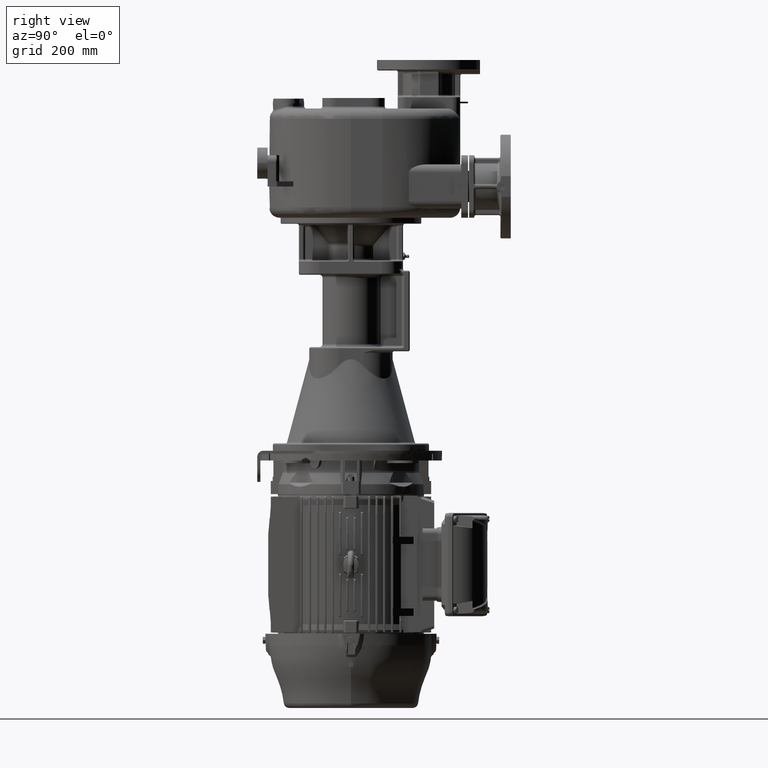
[diagram: clean part render]
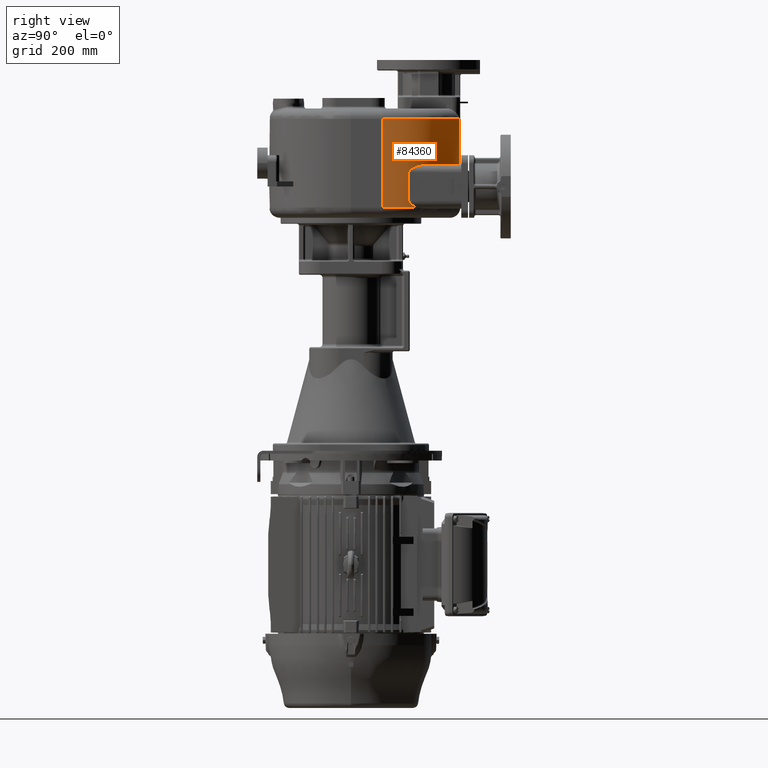
[diagram: same view with one face highlighted and labeled with its STEP entity id]
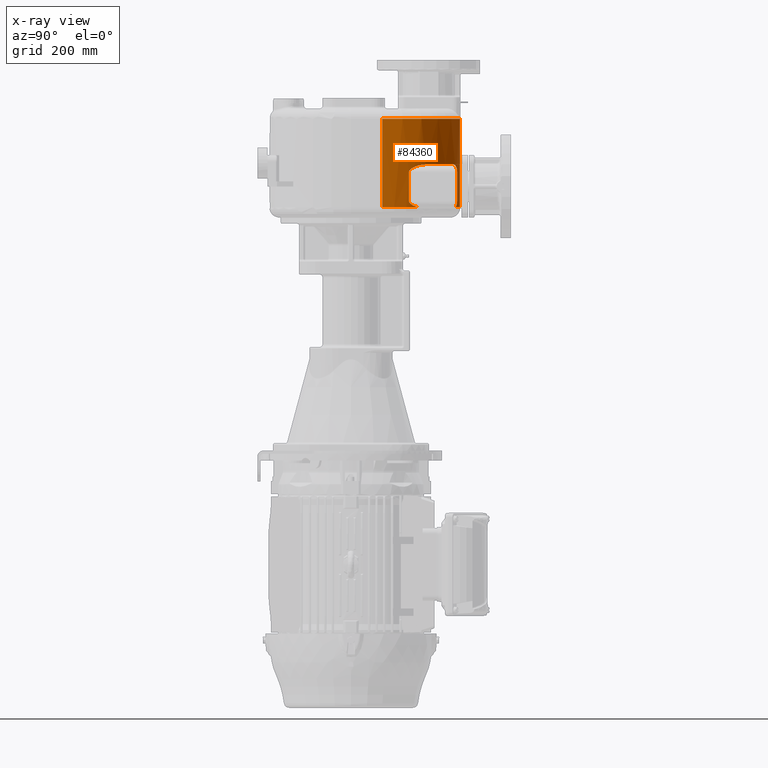
[diagram: x-ray of the same camera — body ghosted, the highlighted face saturated]
A machine part, right view. The second image highlights one B-rep face of the part: STEP entity #84360.
The next image is the same camera in x-ray: the body ghosted, the highlighted face saturated — about 0% of this face is hidden behind the body in this view.
In plain terms, the highlighted cylindrical surface (partial cylindrical patch) has radius 157 mm, axis along (0, 0, -1).
Its self-contained STEP definition (entity closure, byte-faithful):
#18597=DIRECTION('',(2.185638478660E-7,1.445483858030E-7,1.E0));
#18598=VECTOR('',#18597,1.699988728600E2);
#18599=CARTESIAN_POINT('',(6.575348397115E1,3.672268526984E2,
-8.499887285999E1));
#18600=LINE('',#18599,#18598);
#23067=DIRECTION('',(0.E0,0.E0,-1.E0));
#23068=VECTOR('',#23067,5.5E1);
#23069=CARTESIAN_POINT('',(7.95E1,3.619042356408E2,-1.75E1));
#23070=LINE('',#23069,#23068);
#23071=CARTESIAN_POINT('',(1.6E1,2.183188951634E2,-2.5E0));
#23072=DIRECTION('',(0.E0,0.E0,-1.E0));
#23073=DIRECTION('',(5.E-1,8.660254037844E-1,0.E0));
#23074=AXIS2_PLACEMENT_3D('',#23071,#23072,#23073);
#23076=DIRECTION('',(0.E0,0.E0,-1.E0));
#23077=VECTOR('',#23076,5.5E1);
#23078=CARTESIAN_POINT('',(1.645E2,2.692772114621E2,-1.75E1));
#23079=LINE('',#23078,#23077);
#23080=CARTESIAN_POINT('',(1.6E1,2.183188951634E2,8.5E1));
#23081=DIRECTION('',(0.E0,0.E0,1.E0));
#23082=DIRECTION('',(1.E0,0.E0,0.E0));
#23083=AXIS2_PLACEMENT_3D('',#23080,#23081,#23082);
#23085=CARTESIAN_POINT('',(1.6E1,2.183188951634E2,-8.5E1));
#23086=DIRECTION('',(0.E0,0.E0,1.E0));
#23087=DIRECTION('',(1.E0,0.E0,0.E0));
#23088=AXIS2_PLACEMENT_3D('',#23085,#23086,#23087);
#23095=CARTESIAN_POINT('',(1.6E1,2.183188951634E2,-8.5E1));
#23096=DIRECTION('',(0.E0,0.E0,1.E0));
#23097=DIRECTION('',(4.471875033383E-1,8.944402366050E-1,0.E0));
#23098=AXIS2_PLACEMENT_3D('',#23095,#23096,#23097);
#23114=CARTESIAN_POINT('',(1.577915619759E2,2.857292278465E2,-8.5E1));
#23116=CARTESIAN_POINT('',(1.577915619759E2,2.857292278465E2,-8.5E1));
#23117=CARTESIAN_POINT('',(1.579980303421E2,2.852949402383E2,
-8.486304437962E1));
#23118=CARTESIAN_POINT('',(1.584003332799E2,2.844384632574E2,
-8.458149312331E1));
#23119=CARTESIAN_POINT('',(1.589744577099E2,2.831873206511E2,
-8.413646260291E1));
#23120=CARTESIAN_POINT('',(1.595152001140E2,2.819816233284E2,
-8.367410089460E1));
#23121=CARTESIAN_POINT('',(1.600208028618E2,2.808289534858E2,
-8.319898843882E1));
#23122=CARTESIAN_POINT('',(1.604890701882E2,2.797383455746E2,
-8.271693504827E1));
#23123=CARTESIAN_POINT('',(1.609200412815E2,2.787139632426E2,
-8.223228384335E1));
#23124=CARTESIAN_POINT('',(1.613135182933E2,2.777605348366E2,
-8.175009776023E1));
#23125=CARTESIAN_POINT('',(1.616708344078E2,2.768789878636E2,
-8.127402039375E1));
#23126=CARTESIAN_POINT('',(1.619934227748E2,2.760696559833E2,
-8.080758800770E1));
#23127=CARTESIAN_POINT('',(1.622827966520E2,2.753323398916E2,
-8.035439204124E1));
#23128=CARTESIAN_POINT('',(1.625423673896E2,2.746615136582E2,
-7.991479156357E1));
#23129=CARTESIAN_POINT('',(1.627751700810E2,2.740519906283E2,
-7.948889344936E1));
#23130=CARTESIAN_POINT('',(1.629843446905E2,2.734977716709E2,
-7.907577127810E1));
#23131=CARTESIAN_POINT('',(1.631721497060E2,2.729947090549E2,
-7.867529320389E1));
#23132=CARTESIAN_POINT('',(1.633392959235E2,2.725425158630E2,
-7.829046183620E1));
#23133=CARTESIAN_POINT('',(1.634878157960E2,2.721371046128E2,
-7.792135394353E1));
#23134=CARTESIAN_POINT('',(1.636199338717E2,2.717735466126E2,
-7.756685073268E1));
#23135=CARTESIAN_POINT('',(1.637377476075E2,2.714469837294E2,
-7.722525864312E1));
#23136=CARTESIAN_POINT('',(1.638425114278E2,2.711546826599E2,
-7.689661710322E1));
#23137=CARTESIAN_POINT('',(1.639356391862E2,2.708933139698E2,
-7.658008460519E1));
#23138=CARTESIAN_POINT('',(1.640183913369E2,2.706598349949E2,
-7.627469205159E1));
#23139=CARTESIAN_POINT('',(1.640917548469E2,2.704518649365E2,
-7.597998376322E1));
#23140=CARTESIAN_POINT('',(1.641568562403E2,2.702665356358E2,
-7.569440098793E1));
#23141=CARTESIAN_POINT('',(1.642144770625E2,2.701018820124E2,
-7.541718710394E1));
#23142=CARTESIAN_POINT('',(1.642652200817E2,2.699563957208E2,
-7.514811337116E1));
#23143=CARTESIAN_POINT('',(1.643097993107E2,2.698282030345E2,
-7.488595667697E1));
#23144=CARTESIAN_POINT('',(1.643487548724E2,2.697158893130E2,
-7.462985417019E1));
#23145=CARTESIAN_POINT('',(1.643824720875E2,2.696184566573E2,
-7.437956318050E1));
#23146=CARTESIAN_POINT('',(1.644113459909E2,2.695348554630E2,
-7.413452694603E1));
#23147=CARTESIAN_POINT('',(1.644358014907E2,2.694639280817E2,
-7.389324027005E1));
#23148=CARTESIAN_POINT('',(1.644560504906E2,2.694051174637E2,
-7.365552157211E1));
#23149=CARTESIAN_POINT('',(1.644723006589E2,2.693578663168E2,
-7.342107010925E1));
#23150=CARTESIAN_POINT('',(1.644847538074E2,2.693216228943E2,
-7.318919919427E1));
#23151=CARTESIAN_POINT('',(1.644935765344E2,2.692959280093E2,
-7.295859518311E1));
#23152=CARTESIAN_POINT('',(1.644988348832E2,2.692806069721E2,
-7.272908388556E1));
#23153=CARTESIAN_POINT('',(1.645E2,2.692772114621E2,-7.257628919619E1));
#23154=CARTESIAN_POINT('',(1.645E2,2.692772114621E2,-7.25E1));
#23169=CARTESIAN_POINT('',(7.95E1,3.619042356408E2,-7.25E1));
#23170=CARTESIAN_POINT('',(7.95E1,3.619042356408E2,-7.266053974819E1));
#23171=CARTESIAN_POINT('',(7.950515401721E1,3.619019564650E2,
-7.298168320400E1));
#23172=CARTESIAN_POINT('',(7.952837102258E1,3.618916866015E2,
-7.346322321285E1));
#23173=CARTESIAN_POINT('',(7.956704492997E1,3.618745695216E2,
-7.394369951448E1));
#23174=CARTESIAN_POINT('',(7.962113075557E1,3.618506102287E2,
-7.442270686331E1));
#23175=CARTESIAN_POINT('',(7.969068409137E1,3.618197631970E2,
-7.490039521468E1));
#23176=CARTESIAN_POINT('',(7.977561758809E1,3.617820402777E2,
-7.537581098790E1));
#23177=CARTESIAN_POINT('',(7.987583115065E1,3.617374533415E2,
-7.584837213884E1));
#23178=CARTESIAN_POINT('',(7.999144232625E1,3.616859114875E2,
-7.631837247704E1));
#23179=CARTESIAN_POINT('',(8.012232417799E1,3.616274266278E2,
-7.678494010477E1));
#23180=CARTESIAN_POINT('',(8.026826035874E1,3.615620455505E2,
-7.724721469876E1));
#23181=CARTESIAN_POINT('',(8.042940948389E1,3.614896414501E2,
-7.770550889963E1));
#23182=CARTESIAN_POINT('',(8.060566781326E1,3.614101989256E2,
-7.815920287968E1));
#23183=CARTESIAN_POINT('',(8.079675815335E1,3.613237760174E2,
-7.860740626183E1));
#23184=CARTESIAN_POINT('',(8.100271344291E1,3.612302857363E2,
-7.905003148651E1));
#23185=CARTESIAN_POINT('',(8.122357317978E1,3.611296316906E2,
-7.948688233748E1));
#23186=CARTESIAN_POINT('',(8.145901167634E1,3.610218787528E2,
-7.991706793968E1));
#23187=CARTESIAN_POINT('',(8.170885798660E1,3.609070177114E2,
-8.034011470284E1));
#23188=CARTESIAN_POINT('',(8.197332365342E1,3.607848575176E2,
-8.075612568223E1));
#23189=CARTESIAN_POINT('',(8.225202372070E1,3.606554766370E2,
-8.116421440995E1));
#23190=CARTESIAN_POINT('',(8.254462509849E1,3.605189280392E2,
-8.156372045990E1));
#23191=CARTESIAN_POINT('',(8.285140475756E1,3.603749747465E2,
-8.195477866947E1));
#23192=CARTESIAN_POINT('',(8.317192304511E1,3.602237098306E2,
-8.233654849355E1));
#23193=CARTESIAN_POINT('',(8.350586956845E1,3.600651651492E2,
-8.270846238913E1));
#23194=CARTESIAN_POINT('',(8.385346891222E1,3.598991133288E2,
-8.307050725194E1));
#23195=CARTESIAN_POINT('',(8.421413373415E1,3.597257100981E2,
-8.342179906968E1));
#23196=CARTESIAN_POINT('',(8.458766021542E1,3.595449280258E2,
-8.376192513184E1));
#23197=CARTESIAN_POINT('',(8.497409544597E1,3.593566128161E2,
-8.409065155799E1));
#23198=CARTESIAN_POINT('',(8.537272403190E1,3.591609806113E2,
-8.440712194305E1));
#23199=CARTESIAN_POINT('',(8.578373786490E1,3.589578021209E2,
-8.471123496461E1));
#23200=CARTESIAN_POINT('',(8.606559353997E1,3.588174293438E2,
-8.490524768855E1));
#23201=CARTESIAN_POINT('',(8.620843802411E1,3.587460123104E2,-8.5E1));
#23203=CARTESIAN_POINT('',(8.620843802411E1,3.587460123104E2,-8.5E1));
#23237=CARTESIAN_POINT('',(9.45E1,3.542848835576E2,-2.5E0));
#23238=CARTESIAN_POINT('',(9.431474351362E1,3.543918414399E2,-2.5E0));
#23239=CARTESIAN_POINT('',(9.394489097284E1,3.546043663009E2,
-2.506861389056E0));
#23240=CARTESIAN_POINT('',(9.339240276230E1,3.549188570350E2,
-2.537550662286E0));
#23241=CARTESIAN_POINT('',(9.284363834847E1,3.552283041166E2,
-2.588350002853E0));
#23242=CARTESIAN_POINT('',(9.229903852608E1,3.555325428661E2,
-2.658976445687E0));
#23243=CARTESIAN_POINT('',(9.175914049981E1,3.558313598923E2,
-2.749164875359E0));
#23244=CARTESIAN_POINT('',(9.122526596447E1,3.561241242615E2,
-2.858461845610E0));
#23245=CARTESIAN_POINT('',(9.069797663838E1,3.564106421366E2,
-2.986475127176E0));
#23246=CARTESIAN_POINT('',(9.017759579494E1,3.566908530102E2,
-3.132893560171E0));
#23247=CARTESIAN_POINT('',(8.966538364934E1,3.569642037320E2,
-3.297095685291E0));
#23248=CARTESIAN_POINT('',(8.916143039486E1,3.572307787991E2,
-3.478767564056E0));
#23249=CARTESIAN_POINT('',(8.866634129571E1,3.574903892874E2,
-3.677453790019E0));
#23250=CARTESIAN_POINT('',(8.818110694953E1,3.577426568679E2,
-3.892462178407E0));
#23251=CARTESIAN_POINT('',(8.770562883856E1,3.579877749288E2,
-4.123554720616E0));
#23252=CARTESIAN_POINT('',(8.724065835029E1,3.582254968139E2,
-4.370117728082E0));
#23253=CARTESIAN_POINT('',(8.678678667955E1,3.584556674842E2,
-4.631532926927E0));
#23254=CARTESIAN_POINT('',(8.634391477300E1,3.586784808618E2,
-4.907596183477E0));
#23255=CARTESIAN_POINT('',(8.591294607232E1,3.588936263355E2,
-5.197479238772E0));
#23256=CARTESIAN_POINT('',(8.549395562888E1,3.591012123440E2,
-5.500831553668E0));
#23257=CARTESIAN_POINT('',(8.508715364305E1,3.593012751048E2,
-5.817259165519E0));
#23258=CARTESIAN_POINT('',(8.469326088703E1,3.594936018770E2,
-6.145913667117E0));
#23259=CARTESIAN_POINT('',(8.431204134336E1,3.596784464082E2,
-6.486719587234E0));
#23260=CARTESIAN_POINT('',(8.394405378298E1,3.598556714679E2,
-6.838944419057E0));
#23261=CARTESIAN_POINT('',(8.358963100242E1,3.600252508843E2,
-7.201970796663E0));
#23262=CARTESIAN_POINT('',(8.324859751801E1,3.601873965528E2,
-7.575738433448E0));
#23263=CARTESIAN_POINT('',(8.292158207751E1,3.603419339163E2,
-7.959318196109E0));
#23264=CARTESIAN_POINT('',(8.260862475237E1,3.604889664020E2,
-8.352369590370E0));
#23265=CARTESIAN_POINT('',(8.230971300140E1,3.606286153399E2,
-8.754696019291E0));
#23266=CARTESIAN_POINT('',(8.202539782236E1,3.607607356138E2,
-9.165301581302E0));
#23267=CARTESIAN_POINT('',(8.175553893516E1,3.608855005362E2,
-9.584111183145E0));
#23268=CARTESIAN_POINT('',(8.150026657251E1,3.610029511826E2,
-1.001073749537E1));
#23269=CARTESIAN_POINT('',(8.126000841252E1,3.611129886174E2,
-1.044420135620E1));
#23270=CARTESIAN_POINT('',(8.103460808191E1,3.612157770489E2,
-1.088451348269E1));
#23271=CARTESIAN_POINT('',(8.082419280642E1,3.613113443774E2,
-1.133126000036E1));
#23272=CARTESIAN_POINT('',(8.062910430428E1,3.613996170174E2,
-1.178345054479E1));
#23273=CARTESIAN_POINT('',(8.044920479949E1,3.614807332561E2,
-1.224113250797E1));
#23274=CARTESIAN_POINT('',(8.028459251489E1,3.615547182022E2,
-1.270391504449E1));
#23275=CARTESIAN_POINT('',(8.013552995720E1,3.616215182033E2,
-1.317080477594E1));
#23276=CARTESIAN_POINT('',(8.000193933804E1,3.616812266098E2,
-1.364175249459E1));
#23277=CARTESIAN_POINT('',(7.988385537423E1,3.617338799518E2,
-1.411651415536E1));
#23278=CARTESIAN_POINT('',(7.978146954923E1,3.617794391931E2,
-1.459409996871E1));
#23279=CARTESIAN_POINT('',(7.969476318227E1,3.618179530343E2,
-1.507424034918E1));
#23280=CARTESIAN_POINT('',(7.962371991537E1,3.618494627737E2,
-1.555692278484E1));
#23281=CARTESIAN_POINT('',(7.956846844324E1,3.618739393017E2,
-1.604108352663E1));
#23282=CARTESIAN_POINT('',(7.952897868334E1,3.618914177755E2,
-1.652653979103E1));
#23283=CARTESIAN_POINT('',(7.950526420706E1,3.619019077415E2,
-1.701318858106E1));
#23284=CARTESIAN_POINT('',(7.95E1,3.619042356408E2,-1.733774738806E1));
#23285=CARTESIAN_POINT('',(7.95E1,3.619042356408E2,-1.75E1));
#23300=CARTESIAN_POINT('',(1.645E2,2.692772114621E2,-1.75E1));
#23301=CARTESIAN_POINT('',(1.645E2,2.692772114621E2,-1.742377586880E1));
#23302=CARTESIAN_POINT('',(1.644988369038E2,2.692806010831E2,
-1.727110339439E1));
#23303=CARTESIAN_POINT('',(1.644935861112E2,2.692959001089E2,
-1.704174193145E1));
#23304=CARTESIAN_POINT('',(1.644847752066E2,2.693215605848E2,
-1.681128305829E1));
#23305=CARTESIAN_POINT('',(1.644723375477E2,2.693577589949E2,
-1.657953510949E1));
#23306=CARTESIAN_POINT('',(1.644560981648E2,2.694049789132E2,
-1.634509600467E1));
#23307=CARTESIAN_POINT('',(1.644358655842E2,2.694637420245E2,
-1.610745852434E1));
#23308=CARTESIAN_POINT('',(1.644114477187E2,2.695345606276E2,
-1.586640937514E1));
#23309=CARTESIAN_POINT('',(1.643825945555E2,2.696181023907E2,
-1.562140600712E1));
#23310=CARTESIAN_POINT('',(1.643488938136E2,2.697154882446E2,
-1.537111571629E1));
#23311=CARTESIAN_POINT('',(1.643099704496E2,2.698277101287E2,
-1.511511453320E1));
#23312=CARTESIAN_POINT('',(1.642654508924E2,2.699557329231E2,
-1.485317441370E1));
#23313=CARTESIAN_POINT('',(1.642146959079E2,2.701012556898E2,
-1.458391081775E1));
#23314=CARTESIAN_POINT('',(1.641571061403E2,2.702658225261E2,
-1.430675743258E1));
#23315=CARTESIAN_POINT('',(1.640921275691E2,2.704508059225E2,
-1.402158302883E1));
#23316=CARTESIAN_POINT('',(1.640187413419E2,2.706588453595E2,
-1.372664645441E1));
#23317=CARTESIAN_POINT('',(1.639359349557E2,2.708924823212E2,
-1.342094746289E1));
#23318=CARTESIAN_POINT('',(1.638425723027E2,2.711545141719E2,
-1.310355311832E1));
#23319=CARTESIAN_POINT('',(1.637376528359E2,2.714472456941E2,
-1.277447761116E1));
#23320=CARTESIAN_POINT('',(1.636205907411E2,2.717717256207E2,
-1.243505384261E1));
#23321=CARTESIAN_POINT('',(1.634897272185E2,2.721318550947E2,
-1.208367157394E1));
#23322=CARTESIAN_POINT('',(1.633430415187E2,2.725323201587E2,
-1.171861441514E1));
#23323=CARTESIAN_POINT('',(1.631784703275E2,2.729776653805E2,
-1.133887363691E1));
#23324=CARTESIAN_POINT('',(1.629939617333E2,2.734721198960E2,
-1.094410710816E1));
#23325=CARTESIAN_POINT('',(1.627868526527E2,2.740212020499E2,
-1.053336996002E1));
#23326=CARTESIAN_POINT('',(1.625548353247E2,2.746290708371E2,
-1.010717081594E1));
#23327=CARTESIAN_POINT('',(1.622955906695E2,2.752995035237E2,
-9.666440996191E0));
#23328=CARTESIAN_POINT('',(1.620063888371E2,2.760368610757E2,
-9.211941260936E0));
#23329=CARTESIAN_POINT('',(1.616850846691E2,2.768435063993E2,
-8.745816495918E0));
#23330=CARTESIAN_POINT('',(1.613295028791E2,2.777214238067E2,
-8.270379732814E0));
#23331=CARTESIAN_POINT('',(1.609376327152E2,2.786717081046E2,
-7.788434118375E0));
#23332=CARTESIAN_POINT('',(1.605090025864E2,2.796914037021E2,
-7.304586435485E0));
#23333=CARTESIAN_POINT('',(1.600427643143E2,2.807783007656E2,
-6.822688367502E0));
#23334=CARTESIAN_POINT('',(1.595396696839E2,2.819263986671E2,
-6.347921194790E0));
#23335=CARTESIAN_POINT('',(1.590013273316E2,2.831280323780E2,
-5.885503995503E0));
#23336=CARTESIAN_POINT('',(1.584294117619E2,2.843757874888E2,
-5.439991801880E0));
#23337=CARTESIAN_POINT('',(1.578272196374E2,2.856592847207E2,
-5.016398420778E0));
#23338=CARTESIAN_POINT('',(1.571978600893E2,2.869693347024E2,
-4.618644848407E0));
#23339=CARTESIAN_POINT('',(1.565446857170E2,2.882969650687E2,
-4.250071165549E0));
#23340=CARTESIAN_POINT('',(1.558719493202E2,2.896322042328E2,
-3.913719769439E0));
#23341=CARTESIAN_POINT('',(1.551829369914E2,2.909678045225E2,
-3.611421492849E0));
#23342=CARTESIAN_POINT('',(1.544815443557E2,2.922959878838E2,
-3.344758215400E0));
#23343=CARTESIAN_POINT('',(1.537719289833E2,2.936092145808E2,
-3.114768153275E0));
#23344=CARTESIAN_POINT('',(1.530565342118E2,2.949036654979E2,
-2.921499330308E0));
#23345=CARTESIAN_POINT('',(1.523384503315E2,2.961747000317E2,
-2.764955903915E0));
#23346=CARTESIAN_POINT('',(1.516206372873E2,2.974183100275E2,
-2.644778392532E0));
#23347=CARTESIAN_POINT('',(1.509055896105E2,2.986315887198E2,
-2.560285682338E0));
#23348=CARTESIAN_POINT('',(1.501966796129E2,2.998103937494E2,
-2.510664433581E0));
#23349=CARTESIAN_POINT('',(1.497310368953E2,3.005697462248E2,-2.5E0));
#23350=CARTESIAN_POINT('',(1.495E2,3.009430441757E2,-2.5E0));
#23587=CARTESIAN_POINT('',(6.575349946129E1,3.672268839746E2,
-8.499549150304E1));
#23780=DIRECTION('',(0.E0,-4.831690603169E-14,1.E0));
#23781=VECTOR('',#23780,1.7E2);
#23782=CARTESIAN_POINT('',(1.73E2,2.183188951634E2,-8.5E1));
#23783=LINE('',#23782,#23781);
#48843=CARTESIAN_POINT('',(1.645E2,2.692772114621E2,-1.75E1));
#48845=VERTEX_POINT('',#48843);
#48847=CARTESIAN_POINT('',(1.495E2,3.009430441757E2,-2.5E0));
#48849=VERTEX_POINT('',#48847);
#48851=CARTESIAN_POINT('',(9.45E1,3.542848835576E2,-2.5E0));
#48853=VERTEX_POINT('',#48851);
#48855=CARTESIAN_POINT('',(7.95E1,3.619042356408E2,-1.75E1));
#48857=VERTEX_POINT('',#48855);
#48859=CARTESIAN_POINT('',(7.95E1,3.619042356408E2,-7.25E1));
#48861=VERTEX_POINT('',#48859);
#48871=CARTESIAN_POINT('',(1.645E2,2.692772114621E2,-7.25E1));
#48873=VERTEX_POINT('',#48871);
#48875=VERTEX_POINT('',#23203);
#48876=VERTEX_POINT('',#23114);
#48881=CARTESIAN_POINT('',(1.73E2,2.183188951634E2,8.5E1));
#48882=CARTESIAN_POINT('',(6.575352112676E1,3.672268772715E2,8.5E1));
#48883=VERTEX_POINT('',#48881);
#48884=VERTEX_POINT('',#48882);
#48921=CARTESIAN_POINT('',(1.73E2,2.183188951634E2,-8.5E1));
#48923=VERTEX_POINT('',#48921);
#48933=VERTEX_POINT('',#23587);
#84331=CARTESIAN_POINT('',(1.6E1,2.183188951634E2,-1.05E2));
#84332=DIRECTION('',(0.E0,0.E0,-1.E0));
#84333=DIRECTION('',(-1.E0,0.E0,0.E0));
#84334=AXIS2_PLACEMENT_3D('',#84331,#84332,#84333);
#84335=CYLINDRICAL_SURFACE('',#84334,1.57E2);
#84337=ORIENTED_EDGE('',*,*,#84336,.F.);
#84339=ORIENTED_EDGE('',*,*,#84338,.F.);
#84341=ORIENTED_EDGE('',*,*,#84340,.F.);
#84343=ORIENTED_EDGE('',*,*,#84342,.F.);
#84345=ORIENTED_EDGE('',*,*,#84344,.T.);
#84347=ORIENTED_EDGE('',*,*,#84346,.F.);
#84349=ORIENTED_EDGE('',*,*,#84348,.T.);
#84351=ORIENTED_EDGE('',*,*,#84350,.F.);
#84353=ORIENTED_EDGE('',*,*,#84352,.F.);
#84355=ORIENTED_EDGE('',*,*,#84354,.T.);
#84356=ORIENTED_EDGE('',*,*,#84322,.T.);
#84357=ORIENTED_EDGE('',*,*,#79565,.F.);
#84358=EDGE_LOOP('',(#84337,#84339,#84341,#84343,#84345,#84347,#84349,#84351,
#84353,#84355,#84356,#84357));
#84359=FACE_OUTER_BOUND('',#84358,.F.);
#84360=ADVANCED_FACE('',(#84359),#84335,.T.);
#23075=CIRCLE('',#23074,1.57E2);
#23084=CIRCLE('',#23083,1.57E2);
#23089=CIRCLE('',#23088,1.57E2);
#23099=CIRCLE('',#23098,1.57E2);
#23155=B_SPLINE_CURVE_WITH_KNOTS('',3,(#23116,#23117,#23118,#23119,#23120,
#23121,#23122,#23123,#23124,#23125,#23126,#23127,#23128,#23129,#23130,#23131,
#23132,#23133,#23134,#23135,#23136,#23137,#23138,#23139,#23140,#23141,#23142,
#23143,#23144,#23145,#23146,#23147,#23148,#23149,#23150,#23151,#23152,#23153,
#23154),.UNSPECIFIED.,.F.,.F.,(4,1,1,1,1,1,1,1,1,1,1,1,1,1,1,1,1,1,1,1,1,1,1,1,
1,1,1,1,1,1,1,1,1,1,1,1,4),(0.E0,2.777777777778E-2,5.555555555556E-2,
8.333333333333E-2,1.111111111111E-1,1.388888888889E-1,1.666666666667E-1,
1.944444444444E-1,2.222222222222E-1,2.5E-1,2.777777777778E-1,3.055555555556E-1,
3.333333333333E-1,3.611111111111E-1,3.888888888889E-1,4.166666666667E-1,
4.444444444444E-1,4.722222222222E-1,5.E-1,5.277777777778E-1,5.555555555556E-1,
5.833333333333E-1,6.111111111111E-1,6.388888888889E-1,6.666666666667E-1,
6.944444444444E-1,7.222222222222E-1,7.5E-1,7.777777777778E-1,8.055555555556E-1,
8.333333333333E-1,8.611111111111E-1,8.888888888889E-1,9.166666666667E-1,
9.444444444444E-1,9.722222222222E-1,1.E0),.UNSPECIFIED.);
#23202=B_SPLINE_CURVE_WITH_KNOTS('',3,(#23169,#23170,#23171,#23172,#23173,
#23174,#23175,#23176,#23177,#23178,#23179,#23180,#23181,#23182,#23183,#23184,
#23185,#23186,#23187,#23188,#23189,#23190,#23191,#23192,#23193,#23194,#23195,
#23196,#23197,#23198,#23199,#23200,#23201),.UNSPECIFIED.,.F.,.F.,(4,1,1,1,1,1,1,
1,1,1,1,1,1,1,1,1,1,1,1,1,1,1,1,1,1,1,1,1,1,1,4),(0.E0,3.333333333333E-2,
6.666666666667E-2,1.E-1,1.333333333333E-1,1.666666666667E-1,2.E-1,
2.333333333333E-1,2.666666666667E-1,3.E-1,3.333333333333E-1,3.666666666667E-1,
4.E-1,4.333333333333E-1,4.666666666667E-1,5.E-1,5.333333333333E-1,
5.666666666667E-1,6.E-1,6.333333333333E-1,6.666666666667E-1,7.E-1,
7.333333333333E-1,7.666666666667E-1,8.E-1,8.333333333333E-1,8.666666666667E-1,
9.E-1,9.333333333333E-1,9.666666666667E-1,1.E0),.UNSPECIFIED.);
#23286=B_SPLINE_CURVE_WITH_KNOTS('',3,(#23237,#23238,#23239,#23240,#23241,
#23242,#23243,#23244,#23245,#23246,#23247,#23248,#23249,#23250,#23251,#23252,
#23253,#23254,#23255,#23256,#23257,#23258,#23259,#23260,#23261,#23262,#23263,
#23264,#23265,#23266,#23267,#23268,#23269,#23270,#23271,#23272,#23273,#23274,
#23275,#23276,#23277,#23278,#23279,#23280,#23281,#23282,#23283,#23284,#23285),
.UNSPECIFIED.,.F.,.F.,(4,1,1,1,1,1,1,1,1,1,1,1,1,1,1,1,1,1,1,1,1,1,1,1,1,1,1,1,
1,1,1,1,1,1,1,1,1,1,1,1,1,1,1,1,1,1,4),(0.E0,2.173913043478E-2,
4.347826086957E-2,6.521739130435E-2,8.695652173913E-2,1.086956521739E-1,
1.304347826087E-1,1.521739130435E-1,1.739130434783E-1,1.956521739130E-1,
2.173913043478E-1,2.391304347826E-1,2.608695652174E-1,2.826086956522E-1,
3.043478260870E-1,3.260869565217E-1,3.478260869565E-1,3.695652173913E-1,
3.913043478261E-1,4.130434782609E-1,4.347826086957E-1,4.565217391304E-1,
4.782608695652E-1,5.E-1,5.217391304348E-1,5.434782608696E-1,5.652173913043E-1,
5.869565217391E-1,6.086956521739E-1,6.304347826087E-1,6.521739130435E-1,
6.739130434783E-1,6.956521739130E-1,7.173913043478E-1,7.391304347826E-1,
7.608695652174E-1,7.826086956522E-1,8.043478260870E-1,8.260869565217E-1,
8.478260869565E-1,8.695652173913E-1,8.913043478261E-1,9.130434782609E-1,
9.347826086957E-1,9.565217391304E-1,9.782608695652E-1,1.E0),.UNSPECIFIED.);
#23351=B_SPLINE_CURVE_WITH_KNOTS('',3,(#23300,#23301,#23302,#23303,#23304,
#23305,#23306,#23307,#23308,#23309,#23310,#23311,#23312,#23313,#23314,#23315,
#23316,#23317,#23318,#23319,#23320,#23321,#23322,#23323,#23324,#23325,#23326,
#23327,#23328,#23329,#23330,#23331,#23332,#23333,#23334,#23335,#23336,#23337,
#23338,#23339,#23340,#23341,#23342,#23343,#23344,#23345,#23346,#23347,#23348,
#23349,#23350),.UNSPECIFIED.,.F.,.F.,(4,1,1,1,1,1,1,1,1,1,1,1,1,1,1,1,1,1,1,1,1,
1,1,1,1,1,1,1,1,1,1,1,1,1,1,1,1,1,1,1,1,1,1,1,1,1,1,1,4),(0.E0,
2.083333333333E-2,4.166666666667E-2,6.25E-2,8.333333333333E-2,1.041666666667E-1,
1.25E-1,1.458333333333E-1,1.666666666667E-1,1.875E-1,2.083333333333E-1,
2.291666666667E-1,2.5E-1,2.708333333333E-1,2.916666666667E-1,3.125E-1,
3.333333333333E-1,3.541666666667E-1,3.75E-1,3.958333333333E-1,4.166666666667E-1,
4.375E-1,4.583333333333E-1,4.791666666667E-1,5.E-1,5.208333333333E-1,
5.416666666667E-1,5.625E-1,5.833333333333E-1,6.041666666667E-1,6.25E-1,
6.458333333333E-1,6.666666666667E-1,6.875E-1,7.083333333333E-1,
7.291666666667E-1,7.5E-1,7.708333333333E-1,7.916666666667E-1,8.125E-1,
8.333333333333E-1,8.541666666667E-1,8.75E-1,8.958333333333E-1,9.166666666667E-1,
9.375E-1,9.583333333333E-1,9.791666666667E-1,1.E0),.UNSPECIFIED.);
#79565=EDGE_CURVE('',#48933,#48884,#18600,.T.);
#84322=EDGE_CURVE('',#48883,#48884,#23084,.T.);
#84336=EDGE_CURVE('',#48875,#48933,#23099,.T.);
#84338=EDGE_CURVE('',#48861,#48875,#23202,.T.);
#84340=EDGE_CURVE('',#48857,#48861,#23070,.T.);
#84342=EDGE_CURVE('',#48853,#48857,#23286,.T.);
#84344=EDGE_CURVE('',#48853,#48849,#23075,.T.);
#84346=EDGE_CURVE('',#48845,#48849,#23351,.T.);
#84348=EDGE_CURVE('',#48845,#48873,#23079,.T.);
#84350=EDGE_CURVE('',#48876,#48873,#23155,.T.);
#84352=EDGE_CURVE('',#48923,#48876,#23089,.T.);
#84354=EDGE_CURVE('',#48923,#48883,#23783,.T.);